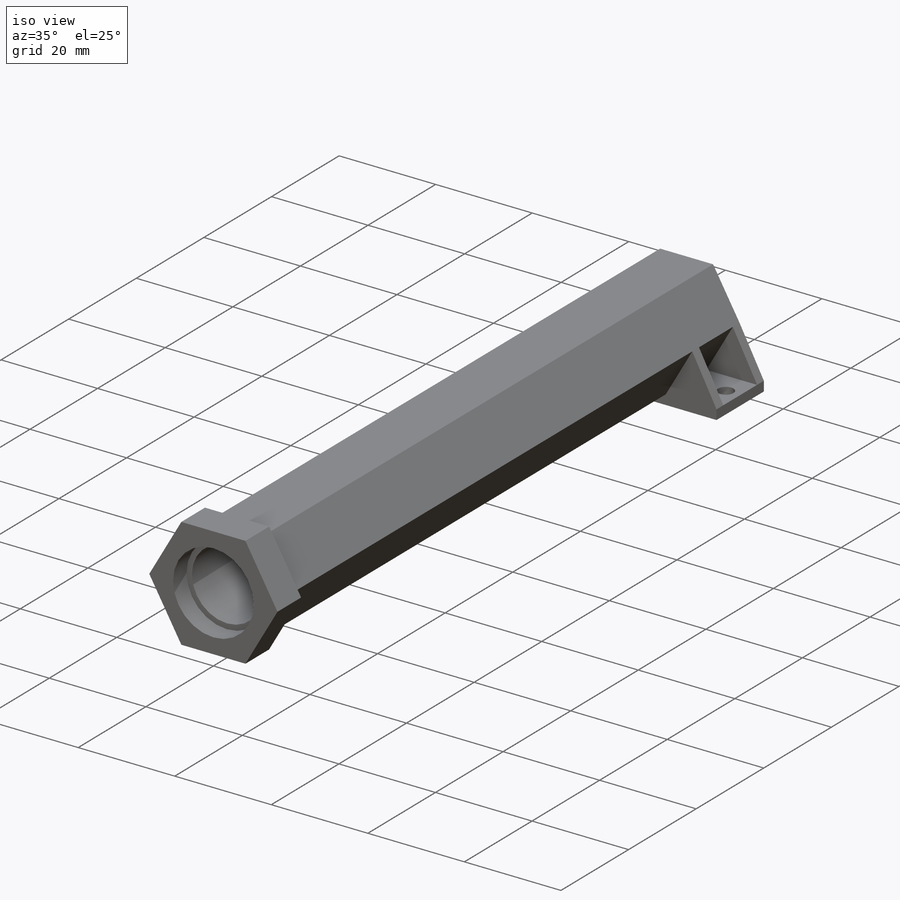
[diagram: iso view]
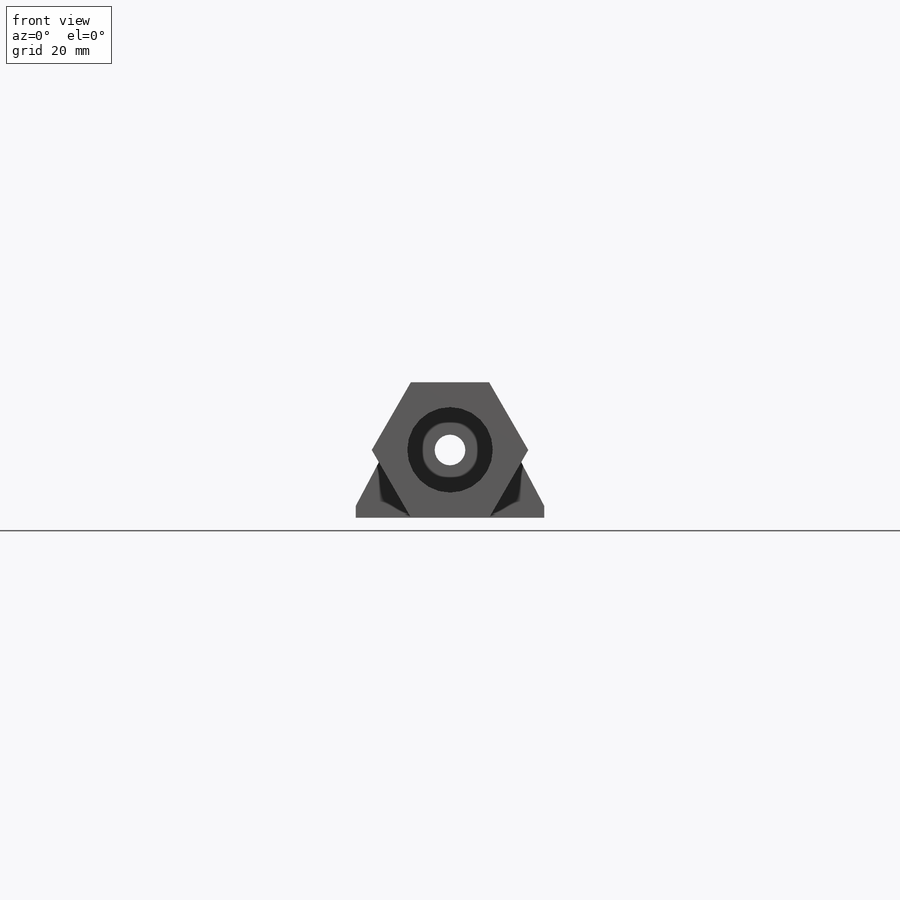
[diagram: front view]
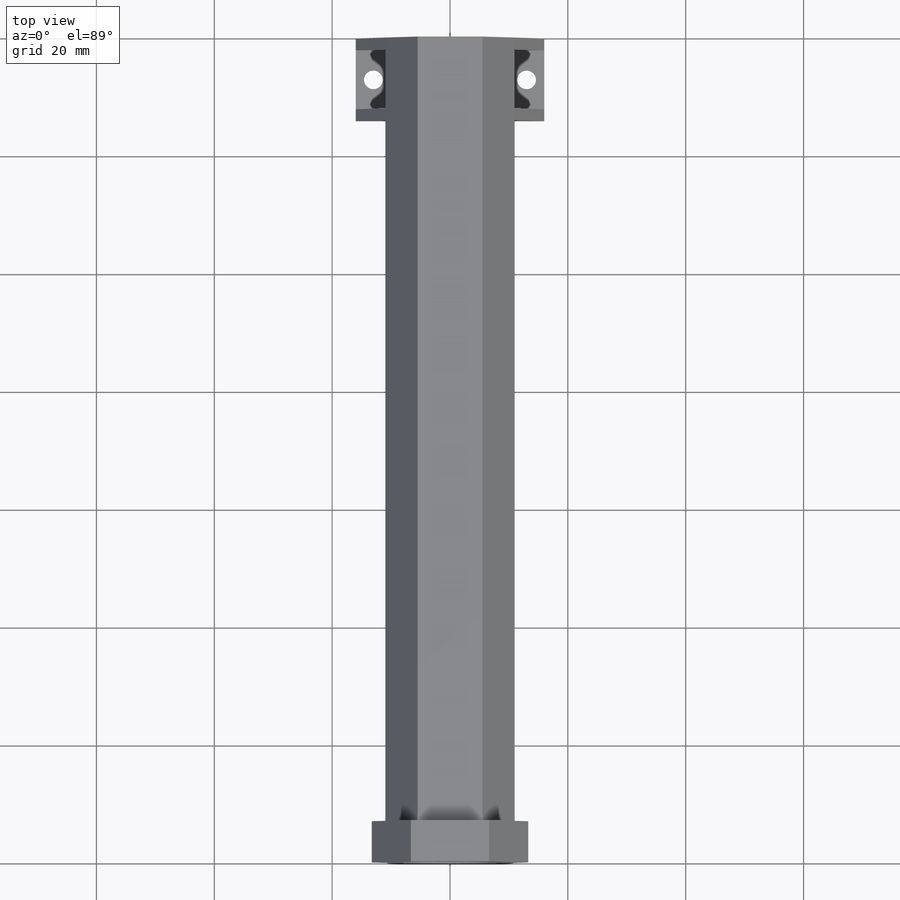
[diagram: top view]
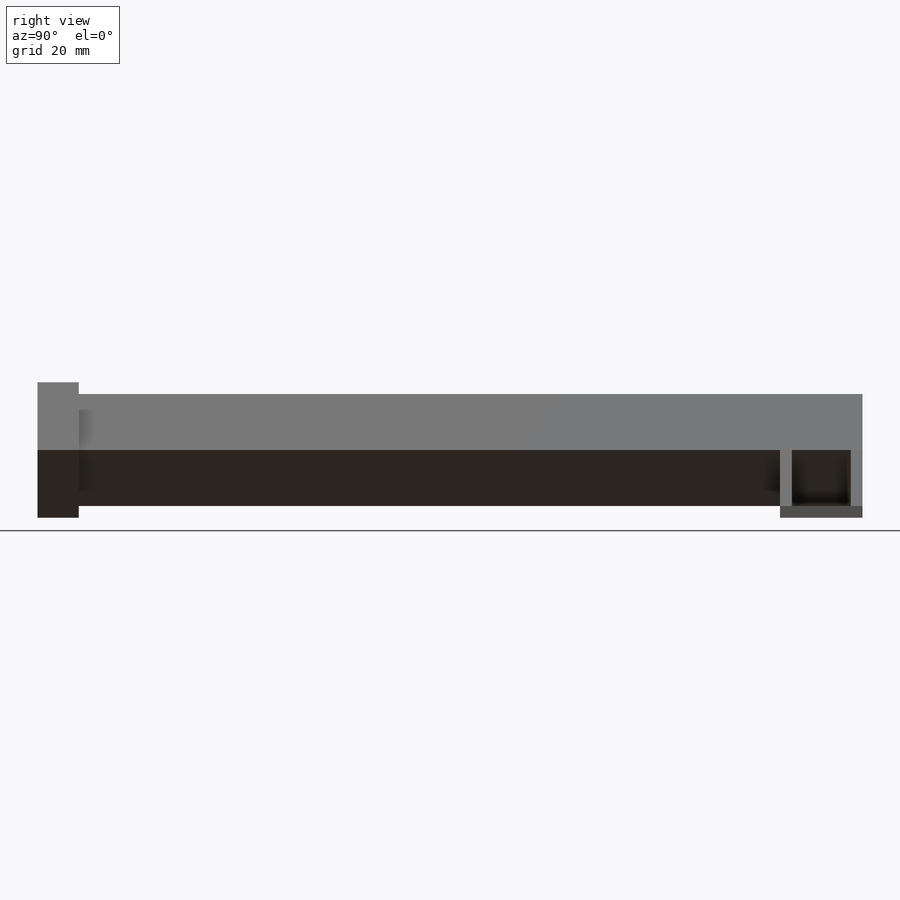
[diagram: right view]
SOLIDWORKS PART (.sldprt)
format: sldprt  version: not decoded by parser v0  size: 314,368 bytes
history: native  units: mm
features: sketch x7, extrude x5, plane x3, material x1, pattern_linear x1, cut_extrude x1 (+9 scaffold rows collapsed)
feature tree (27):
  scaffold x9  (default folders/planes/origin — collapsed)
  material  "ABS"
  plane  "Ebene vorne"
  plane  "Ebene oben"
  plane  "Ebene rechts"
  sketch  "Skizze1"  dims[c1.D1=15.0mm c1.D2=15.0mm c2.D1=7.5mm c2.D3=14.5mm c2.D4=19.0mm c2.D2=2.0mm c3.D1=2.0mm c3.D2=7.5mm c3.D3=9.5mm c4.D1=~21.93931mm c4.D2=14.5mm c4.D3=9.5mm c4.D4=9.5mm c5.D2=9.5mm c6.D2=60.0deg]
  extrude  "Aufsatz-Linear austragen1"  Depth=136mm
  sketch  "Skizze2"  dims[c1.D1=~3.816433mm c1.D2=7.5mm c2.D1=5.0mm c2.D2=15.0mm]
  extrude  "Aufsatz-Linear austragen2"  Depth=2mm
  sketch  "3D-Skizze5"  dims[D2=2.0mm D1=133.0mm]
  sketch  "Skizze3"  dims[c1.D1=17.0mm c1.D2=~21.758628mm c2.D1=7.5mm c2.D2=7.5mm c3.D1=9.5mm c3.D2=19.0mm c3.D3=~26.761654mm c4.D2=~26.761654mm c4.D1=16.7mm c5.D2=1.0mm c5.D1=2.0mm c6.D2=23.0mm c6.D1=2.0mm c7.D2=2.0mm c7.D1=2.0mm c7.D3=23.0mm c8.D1=2.0mm c8.D2=9.5mm c8.D3=9.5mm c8.D4=9.5mm c8.D5=2.0mm c8.D6=~2.309401mm c9.D1=16.6mm c9.D2=2.0mm c9.D3=11.5mm c10.D2=2.0mm]
  extrude  "Aufsatz-Linear austragen3"  Depth=7mm
  sketch  "Skizze7"  dims[c1.D1=~9.368406mm c1.D3=11.5mm c2.D1=10.0mm c2.D2=32.0mm c3.D1=32.0mm c4.D1=~79.842766deg]
  extrude  "Aufsatz-Linear austragen6"  Depth=2mm
  pattern_linear  "Lineares Muster3"  Count1=2 Count2=1 Spacing1=12mm Spacing2=50mm
  sketch  "Skizze12"  dims[c1.D1=3.2mm c1.D7=3.2mm c1.D2=10.0mm c1.D3=32.0mm c1.D4=5.0mm c1.D5=3.0mm c2.D7=3.0mm c2.D8=5.0mm c2.D2=14.0mm c2.D3=32.0mm c2.D4=3.0mm c2.D5=3.0mm c3.D7=5.0mm c3.D8=5.0mm c4.D7=7.0mm c4.D8=7.0mm c4.D6=2.0]
  extrude  "Aufsatz-Linear austragen14"  Depth=2mm
  sketch  "Skizze14"  dims[D1=5.2mm]
  cut_extrude  "Schnitt-Linear austragen1"  [1 undecoded]
decode coverage: 13 of 14 modeling features carry decoded parameters
note: ~ marks probable driven/reference dimensions
note: 1 parameter value undecoded
note: suppression state not decoded; provenance and decode notes live in map.json
